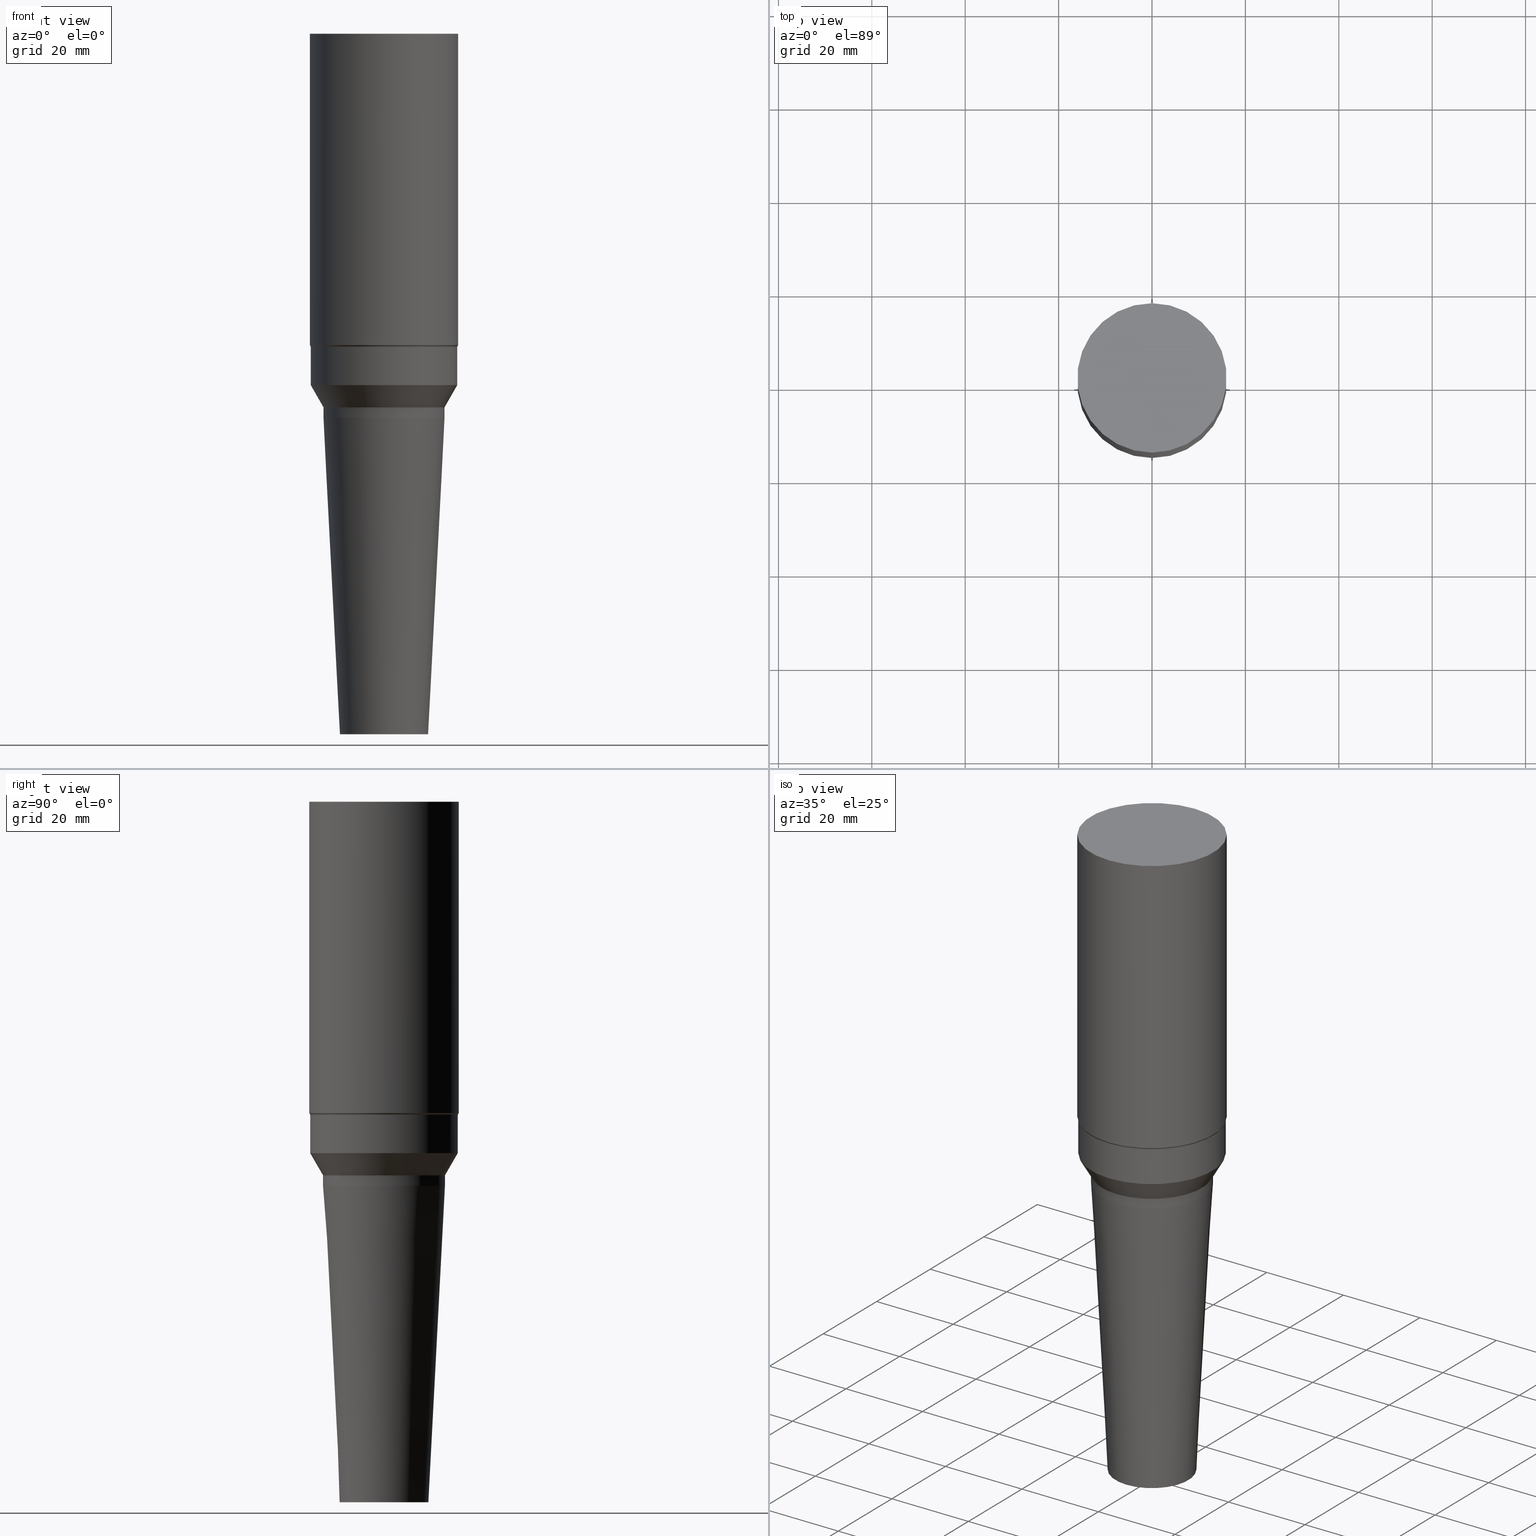
[diagram: canonical four-view strip — front | top / right | iso, engineering-drawing reading convention]
A machine part, canonical four-view strip (front | top / right | iso — engineering-drawing reading convention). The complete STEP part file that produces these views, byte-faithful:
ISO-10303-21;
HEADER;
FILE_DESCRIPTION((''),'1');
FILE_NAME('//Big_tech03/bigt/Translate/BIG-HP/\X2\30C030A630F330ED30FC30C930C730FC30BF\X0\/201309/ST/14_\X2\713C304D30703081FF81FF6CFF6FFF78\X0\SRC/02_\X2\FF7DFF98FF91FF80FF72FF8CFF9F\X0\/ST32-SRC12S-150-K70.stp','2013-09-19T06:33:31',(''),(''),'Spatial Interop R18','Kubotek KeyCreator V8.5.1 (14335)',' ');
FILE_SCHEMA(('CONFIG_CONTROL_DESIGN'));
ENDSEC;
DATA;
#1=DESIGN_CONTEXT('',#27,'design');
#2=APPLICATION_PROTOCOL_DEFINITION('INTERNATIONAL STANDARD','config_control_design',1994,#27);
#3=PRODUCT_CATEGORY_RELATIONSHIP('NONE','NONE',#28,#29);
#4=DATE_AND_TIME(#30,#31);
#5=DATE_TIME_ROLE('creation_date');
#6=DATE_TIME_ROLE('classification_date');
#7=PERSON_AND_ORGANIZATION_ROLE('creator');
#8=PERSON_AND_ORGANIZATION_ROLE('design_supplier');
#9=PERSON_AND_ORGANIZATION_ROLE('classification_officer');
#10=PERSON_AND_ORGANIZATION_ROLE('design_owner');
#11=APPROVAL_PERSON_ORGANIZATION(#32,#33,#34);
#12=APPROVAL_DATE_TIME(#4,#33);
#13=CC_DESIGN_APPROVAL(#33,(#35,#36,#37));
#14=CC_DESIGN_DATE_AND_TIME_ASSIGNMENT(#4,#5,(#37));
#15=CC_DESIGN_DATE_AND_TIME_ASSIGNMENT(#4,#6,(#35));
#16=CC_DESIGN_PERSON_AND_ORGANIZATION_ASSIGNMENT(#32,#10,(#38));
#17=CC_DESIGN_PERSON_AND_ORGANIZATION_ASSIGNMENT(#32,#7,(#37));
#18=CC_DESIGN_PERSON_AND_ORGANIZATION_ASSIGNMENT(#32,#7,(#36));
#19=CC_DESIGN_PERSON_AND_ORGANIZATION_ASSIGNMENT(#32,#8,(#36));
#20=CC_DESIGN_SECURITY_CLASSIFICATION(#35,(#36));
#21=CC_DESIGN_PERSON_AND_ORGANIZATION_ASSIGNMENT(#32,#9,(#35));
#22=SHAPE_DEFINITION_REPRESENTATION(#39,#40);
#23= (GEOMETRIC_REPRESENTATION_CONTEXT(3)GLOBAL_UNCERTAINTY_ASSIGNED_CONTEXT((#43))GLOBAL_UNIT_ASSIGNED_CONTEXT((#45,#46,#47))REPRESENTATION_CONTEXT('NONE','WORKSPACE'));
#27=APPLICATION_CONTEXT('CONFIGURATION CONTROLLED 3D DESIGNS OF MECHANICAL PARTS AND ASSEMBLIES');
#28=PRODUCT_CATEGORY('part','NONE');
#29=PRODUCT_RELATED_PRODUCT_CATEGORY('detail',' ',(#38));
#30=CALENDAR_DATE(2013,19,8);
#31=LOCAL_TIME(15,33,31.0,#49);
#32=PERSON_AND_ORGANIZATION(#50,#51);
#33=APPROVAL(#52,'SOLID MODEL');
#34=APPROVAL_ROLE('APPROVED');
#35=SECURITY_CLASSIFICATION('','',#53);
#36=PRODUCT_DEFINITION_FORMATION_WITH_SPECIFIED_SOURCE(' ','NONE',#38,.NOT_KNOWN.);
#37=PRODUCT_DEFINITION('NONE','NONE',#36,#1);
#38=PRODUCT('1','1','PART-1-DESC',(#54));
#39=PRODUCT_DEFINITION_SHAPE('NONE','NONE',#37);
#40=ADVANCED_BREP_SHAPE_REPRESENTATION('1',(#55,#56),#23);
#43=UNCERTAINTY_MEASURE_WITH_UNIT(LENGTH_MEASURE(1.0E-006),#45,'','');
#45= (CONVERSION_BASED_UNIT('MILLIMETRE',#59)LENGTH_UNIT()NAMED_UNIT(#62));
#46= (NAMED_UNIT(#64)PLANE_ANGLE_UNIT()SI_UNIT($,.RADIAN.));
#47= (NAMED_UNIT(#64)SOLID_ANGLE_UNIT()SI_UNIT($,.STERADIAN.));
#49=COORDINATED_UNIVERSAL_TIME_OFFSET(9,0,.AHEAD.);
#50=PERSON('','UNSPECIFIED',$,$,$,$);
#51=ORGANIZATION('UNSPECIFIED','UNSPECIFIED','UNSPECIFIED');
#52=APPROVAL_STATUS('approved');
#53=SECURITY_CLASSIFICATION_LEVEL('unclassified');
#54=MECHANICAL_CONTEXT('',#27,'mechanical');
#55=MANIFOLD_SOLID_BREP('1',#70);
#56=AXIS2_PLACEMENT_3D('',#71,#72,#73);
#59=LENGTH_MEASURE_WITH_UNIT(LENGTH_MEASURE(1.0),#74);
#62=DIMENSIONAL_EXPONENTS(1.0,0.0,0.0,0.0,0.0,0.0,0.0);
#64=DIMENSIONAL_EXPONENTS(0.0,0.0,0.0,0.0,0.0,0.0,0.0);
#70=CLOSED_SHELL('',(#75,#76,#77,#78,#79,#80,#81,#82));
#71=CARTESIAN_POINT('',(0.0,0.0,0.0));
#72=DIRECTION('',(0.0,0.0,1.0));
#73=DIRECTION('',(1.0,0.0,0.0));
#74= (NAMED_UNIT(#62)LENGTH_UNIT()SI_UNIT(.MILLI.,.METRE.));
#75=ADVANCED_FACE('',(#84),#85,.T.);
#76=ADVANCED_FACE('',(#86,#87),#88,.T.);
#77=ADVANCED_FACE('',(#89,#90),#91,.T.);
#78=ADVANCED_FACE('',(#92,#93),#94,.T.);
#79=ADVANCED_FACE('',(#95,#96),#97,.T.);
#80=ADVANCED_FACE('',(#98,#99),#100,.T.);
#81=ADVANCED_FACE('',(#101,#102),#103,.T.);
#82=ADVANCED_FACE('',(#104),#105,.T.);
#84=FACE_OUTER_BOUND('',#106,.T.);
#85=PLANE('',#107);
#86=FACE_BOUND('',#108,.T.);
#87=FACE_BOUND('',#109,.T.);
#88=CYLINDRICAL_SURFACE('',#110,16.0);
#89=FACE_BOUND('',#111,.T.);
#90=FACE_BOUND('',#112,.T.);
#91=CONICAL_SURFACE('',#113,15.9,0.52359877749051);
#92=FACE_BOUND('',#114,.T.);
#93=FACE_BOUND('',#115,.T.);
#94=CYLINDRICAL_SURFACE('',#116,15.8);
#95=FACE_BOUND('',#117,.T.);
#96=FACE_BOUND('',#118,.T.);
#97=CONICAL_SURFACE('',#119,14.425,0.523598775672336);
#98=FACE_BOUND('',#120,.T.);
#99=FACE_BOUND('',#121,.T.);
#100=CYLINDRICAL_SURFACE('',#122,13.05);
#101=FACE_BOUND('',#123,.T.);
#102=FACE_BOUND('',#124,.T.);
#103=CONICAL_SURFACE('',#125,11.2750000010934,0.0523598775287403);
#104=FACE_OUTER_BOUND('',#126,.T.);
#105=PLANE('',#127);
#106=EDGE_LOOP('',(#128));
#107=AXIS2_PLACEMENT_3D('',#129,#130,#131);
#108=EDGE_LOOP('',(#132));
#109=EDGE_LOOP('',(#133));
#110=AXIS2_PLACEMENT_3D('',#134,#135,#136);
#111=EDGE_LOOP('',(#137));
#112=EDGE_LOOP('',(#138));
#113=AXIS2_PLACEMENT_3D('',#139,#140,#141);
#114=EDGE_LOOP('',(#142));
#115=EDGE_LOOP('',(#143));
#116=AXIS2_PLACEMENT_3D('',#144,#145,#146);
#117=EDGE_LOOP('',(#147));
#118=EDGE_LOOP('',(#148));
#119=AXIS2_PLACEMENT_3D('',#149,#150,#151);
#120=EDGE_LOOP('',(#152));
#121=EDGE_LOOP('',(#153));
#122=AXIS2_PLACEMENT_3D('',#154,#155,#156);
#123=EDGE_LOOP('',(#157));
#124=EDGE_LOOP('',(#158));
#125=AXIS2_PLACEMENT_3D('',#159,#160,#161);
#126=EDGE_LOOP('',(#162));
#127=AXIS2_PLACEMENT_3D('',#163,#164,#165);
#128=ORIENTED_EDGE('',*,*,#166,.F.);
#129=CARTESIAN_POINT('',(-9.18485099360515E-015,7.99999999999998,150.0));
#130=DIRECTION('',(-6.12323399573677E-017,-1.22464679914735E-016,1.0));
#131=DIRECTION('',(1.23259516440783E-032,-1.0,-1.22464679914735E-016));
#132=ORIENTED_EDGE('',*,*,#167,.F.);
#133=ORIENTED_EDGE('',*,*,#166,.T.);
#134=CARTESIAN_POINT('',(-7.14417335737424E-015,-1.42883467147485E-014,116.67320508));
#135=DIRECTION('',(-6.12323399573677E-017,-1.22464679914735E-016,1.0));
#136=DIRECTION('',(-1.23259516440783E-032,1.0,1.22464679914735E-016));
#137=ORIENTED_EDGE('',*,*,#168,.F.);
#138=ORIENTED_EDGE('',*,*,#167,.T.);
#139=CARTESIAN_POINT('',(-5.09288996880242E-015,-1.01857799376048E-014,83.17320508));
#140=DIRECTION('',(-6.12323399573677E-017,-1.22464679914735E-016,1.0));
#141=DIRECTION('',(-1.23259516440783E-032,1.0,1.22464679914735E-016));
#142=ORIENTED_EDGE('',*,*,#169,.F.);
#143=ORIENTED_EDGE('',*,*,#168,.T.);
#144=CARTESIAN_POINT('',(-4.83010310203837E-015,-9.66020620407673E-015,78.88156986));
#145=DIRECTION('',(-6.12323399573677E-017,-1.22464679914735E-016,1.0));
#146=DIRECTION('',(-1.23259516440783E-032,1.0,1.22464679914735E-016));
#147=ORIENTED_EDGE('',*,*,#170,.F.);
#148=ORIENTED_EDGE('',*,*,#169,.T.);
#149=CARTESIAN_POINT('',(-4.43209289231548E-015,-8.86418578463095E-015,72.38156986));
#150=DIRECTION('',(-6.12323399573677E-017,-1.22464679914735E-016,1.0));
#151=DIRECTION('',(-1.23259516440783E-032,1.0,1.22464679914735E-016));
#152=ORIENTED_EDGE('',*,*,#171,.F.);
#153=ORIENTED_EDGE('',*,*,#170,.T.);
#154=CARTESIAN_POINT('',(-4.21701109943778E-015,-8.43402219887556E-015,68.86901762));
#155=DIRECTION('',(-6.12323399573677E-017,-1.22464679914735E-016,1.0));
#156=DIRECTION('',(-1.23259516440783E-032,1.0,1.22464679914735E-016));
#157=ORIENTED_EDGE('',*,*,#172,.F.);
#158=ORIENTED_EDGE('',*,*,#171,.T.);
#159=CARTESIAN_POINT('',(-2.07387920092992E-015,-4.14775840185983E-015,33.86901762));
#160=DIRECTION('',(-6.12323399573676E-017,-1.22464679914735E-016,1.0));
#161=DIRECTION('',(-1.23259516440783E-032,1.0,1.22464679914735E-016));
#162=ORIENTED_EDGE('',*,*,#172,.T.);
#163=CARTESIAN_POINT('',(0.0,4.75000000109337,0.0));
#164=DIRECTION('',(6.12323399573677E-017,1.22464679914735E-016,-1.0));
#165=DIRECTION('',(-1.23259516440783E-032,1.0,1.22464679914735E-016));
#166=EDGE_CURVE('',#173,#173,#174,.T.);
#167=EDGE_CURVE('',#175,#175,#176,.T.);
#168=EDGE_CURVE('',#177,#177,#178,.T.);
#169=EDGE_CURVE('',#179,#179,#180,.T.);
#170=EDGE_CURVE('',#181,#181,#182,.T.);
#171=EDGE_CURVE('',#183,#183,#184,.T.);
#172=EDGE_CURVE('',#185,#185,#186,.T.);
#173=VERTEX_POINT('',#187);
#174=CIRCLE('',#188,16.0);
#175=VERTEX_POINT('',#189);
#176=CIRCLE('',#190,16.0);
#177=VERTEX_POINT('',#191);
#178=CIRCLE('',#192,15.8);
#179=VERTEX_POINT('',#193);
#180=CIRCLE('',#194,15.8);
#181=VERTEX_POINT('',#195);
#182=CIRCLE('',#196,13.05);
#183=VERTEX_POINT('',#197);
#184=CIRCLE('',#198,13.05);
#185=VERTEX_POINT('',#199);
#186=CIRCLE('',#200,9.50000000218675);
#187=CARTESIAN_POINT('',(-9.18485099360515E-015,16.0,150.0));
#188=AXIS2_PLACEMENT_3D('',#201,#202,#203);
#189=CARTESIAN_POINT('',(-5.10349572114332E-015,16.0,83.34641016));
#190=AXIS2_PLACEMENT_3D('',#204,#205,#206);
#191=CARTESIAN_POINT('',(-5.08228421646152E-015,15.8,83.0));
#192=AXIS2_PLACEMENT_3D('',#207,#208,#209);
#193=CARTESIAN_POINT('',(-4.57792198761522E-015,15.8,74.76313972));
#194=AXIS2_PLACEMENT_3D('',#210,#211,#212);
#195=CARTESIAN_POINT('',(-4.28626379701574E-015,13.05,70.0));
#196=AXIS2_PLACEMENT_3D('',#213,#214,#215);
#197=CARTESIAN_POINT('',(-4.14775840185983E-015,13.05,67.73803524));
#198=AXIS2_PLACEMENT_3D('',#216,#217,#218);
#199=CARTESIAN_POINT('',(0.0,9.50000000218675,0.0));
#200=AXIS2_PLACEMENT_3D('',#219,#220,#221);
#201=CARTESIAN_POINT('',(-9.18485099360515E-015,-1.83697019872103E-014,150.0));
#202=DIRECTION('',(6.12323399573677E-017,1.22464679914735E-016,-1.0));
#203=DIRECTION('',(-1.23259516440783E-032,1.0,1.22464679914735E-016));
#204=CARTESIAN_POINT('',(-5.10349572114332E-015,-1.02069914422866E-014,83.34641016));
#205=DIRECTION('',(6.12323399573677E-017,1.22464679914735E-016,-1.0));
#206=DIRECTION('',(-1.23259516440783E-032,1.0,1.22464679914735E-016));
#207=CARTESIAN_POINT('',(-5.08228421646152E-015,-1.0164568432923E-014,83.0));
#208=DIRECTION('',(6.12323399573677E-017,1.22464679914735E-016,-1.0));
#209=DIRECTION('',(-1.23259516440783E-032,1.0,1.22464679914735E-016));
#210=CARTESIAN_POINT('',(-4.57792198761522E-015,-9.15584397523043E-015,74.76313972));
#211=DIRECTION('',(6.12323399573677E-017,1.22464679914735E-016,-1.0));
#212=DIRECTION('',(-1.23259516440783E-032,1.0,1.22464679914735E-016));
#213=CARTESIAN_POINT('',(-4.28626379701574E-015,-8.57252759403147E-015,70.0));
#214=DIRECTION('',(6.12323399573677E-017,1.22464679914735E-016,-1.0));
#215=DIRECTION('',(-1.23259516440783E-032,1.0,1.22464679914735E-016));
#216=CARTESIAN_POINT('',(-4.14775840185983E-015,-8.29551680371966E-015,67.73803524));
#217=DIRECTION('',(6.12323399573677E-017,1.22464679914735E-016,-1.0));
#218=DIRECTION('',(-1.23259516440783E-032,1.0,1.22464679914735E-016));
#219=CARTESIAN_POINT('',(0.0,0.0,0.0));
#220=DIRECTION('',(6.12323399573677E-017,1.22464679914735E-016,-1.0));
#221=DIRECTION('',(-1.23259516440783E-032,1.0,1.22464679914735E-016));
ENDSEC;
END-ISO-10303-21;
